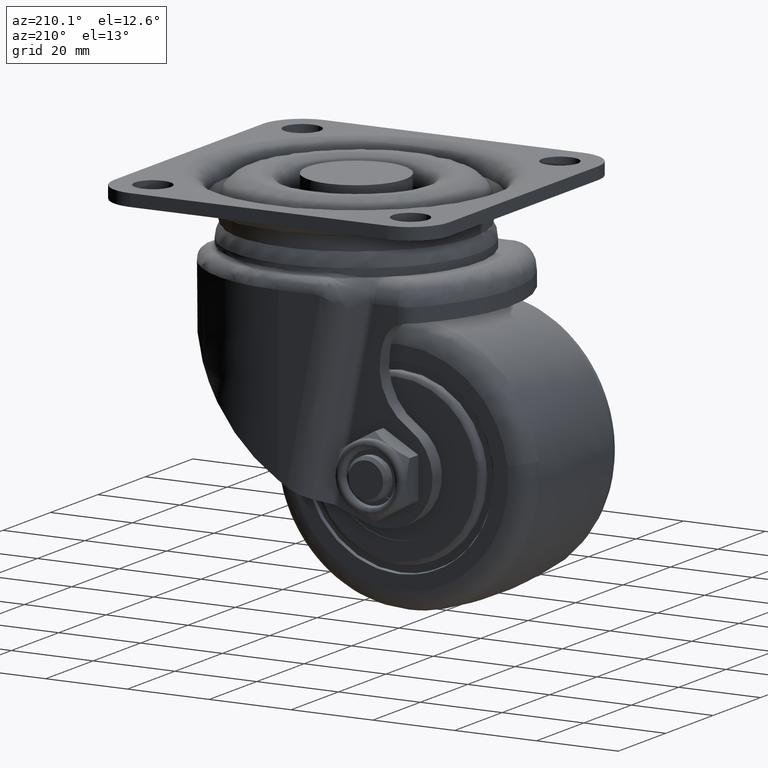
[diagram: clean part render]
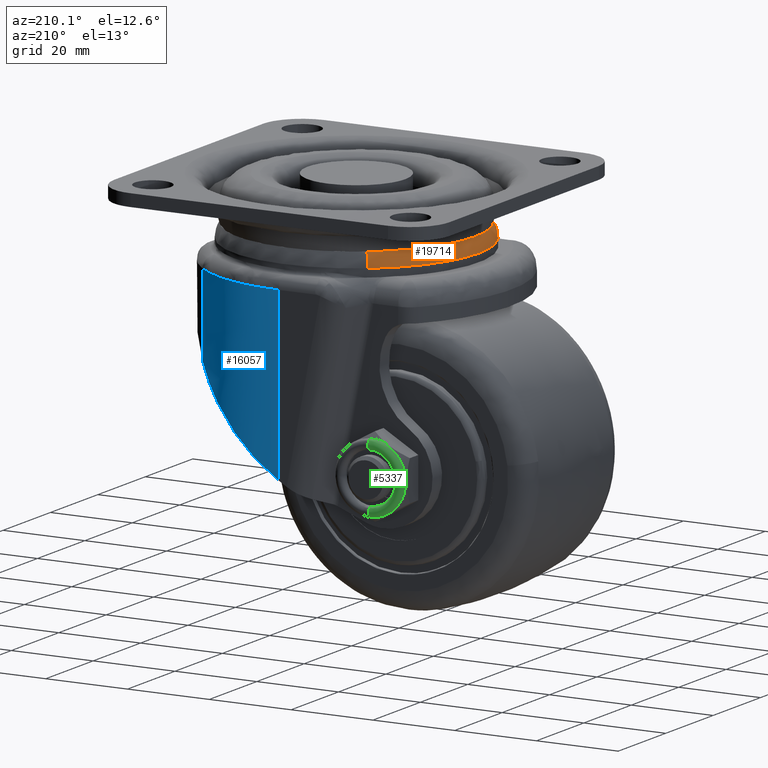
[diagram: same view with three faces highlighted in distinct colors, each labeled with its STEP entity id]
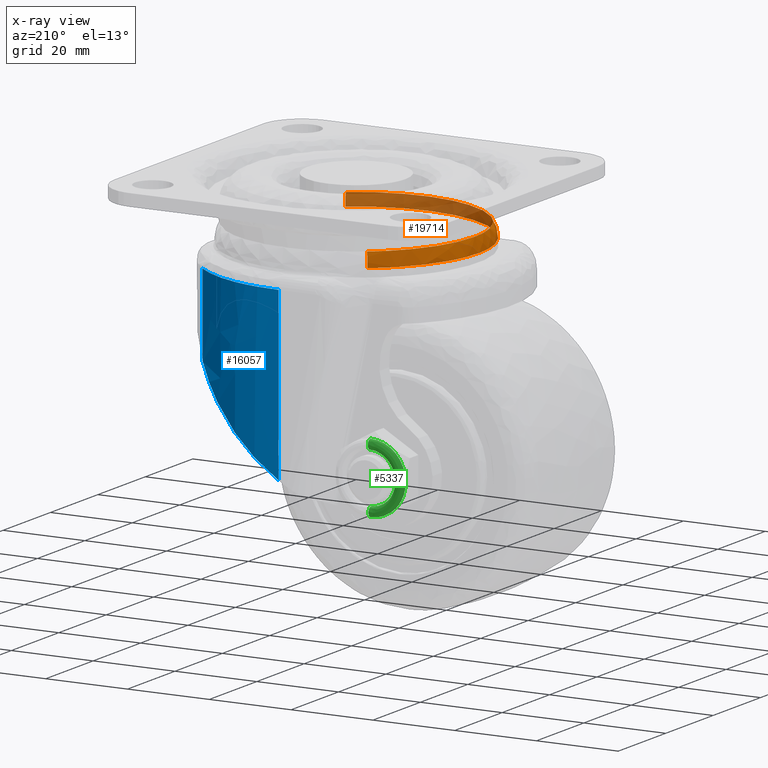
[diagram: x-ray of the same camera — body ghosted, the three highlighted faces saturated]
A machine part, auxiliary view with three faces highlighted in distinct colors.
The next image is the same camera in x-ray (body ghosted, the three faces saturated) — at least one of them is partly hidden behind the body in this view.
Their STEP definitions:

[orange] entity #19714 — the highlighted face is a freeform B-spline surface patch.
#19392=CARTESIAN_POINT('',(39.018068473803012,-24.705977928852452,43.500000000006892));
#19393=VERTEX_POINT('',#19392);
#19405=CARTESIAN_POINT('',(-7.999999999999752,0.0,43.500000000000000));
#19406=VERTEX_POINT('',#19405);
#19407=CARTESIAN_POINT('',(39.018068473803012,-24.705977928852452,43.500000000006892));
#19408=CARTESIAN_POINT('',(37.899136566577539,-25.476770882186731,43.500000000006843));
#19409=CARTESIAN_POINT('',(35.373283712868698,-26.974579594579829,43.500000000006757));
#19410=CARTESIAN_POINT('',(31.747256261285159,-28.459806140460639,43.500000000006061));
#19411=CARTESIAN_POINT('',(27.845828207082761,-29.503426131044719,43.500000000005961));
#19412=CARTESIAN_POINT('',(24.092540548080290,-30.025648319940309,43.500000000006132));
#19413=CARTESIAN_POINT('',(20.347903590472729,-30.018544063603660,43.500000000003297));
#19414=CARTESIAN_POINT('',(16.885101286128570,-29.620666105272040,43.500000000008797));
#19415=CARTESIAN_POINT('',(13.358354463294340,-28.822163332190389,43.500000000001450));
#19416=CARTESIAN_POINT('',(9.967235563813381,-27.559556591523979,43.500000000006040));
#19417=CARTESIAN_POINT('',(6.905883790530472,-25.983892573029770,43.500000000003091));
#19418=CARTESIAN_POINT('',(4.087099893762439,-24.156887830135538,43.500000000002892));
#19419=CARTESIAN_POINT('',(1.441887079658121,-21.946377487990489,43.500000000002402));
#19420=CARTESIAN_POINT('',(-1.124219552754471,-19.223670293534632,43.500000000001933));
#19421=CARTESIAN_POINT('',(-3.402204644880818,-16.144393574919139,43.500000000001641));
#19422=CARTESIAN_POINT('',(-5.187655754523197,-12.850938144891350,43.500000000000703));
#19423=CARTESIAN_POINT('',(-6.552119952336158,-9.413740274576776,43.500000000000462));
#19424=CARTESIAN_POINT('',(-7.668277099717646,-5.307464968194641,43.500000000002622));
#19425=CARTESIAN_POINT('',(-8.000257724040681,-1.995654246931439,43.499999999995772));
#19426=CARTESIAN_POINT('',(-7.999999999999752,0.0,43.500000000000000));
#19427=B_SPLINE_CURVE_WITH_KNOTS('',3,(#19407,#19408,#19409,#19410,#19411,#19412,#19413,#19414,#19415,#19416,#19417,#19418,#19419,#19420,#19421,#19422,#19423,#19424,#19425,#19426),.UNSPECIFIED.,.F.,.U.,(4,1,1,1,1,1,1,1,1,1,1,1,1,1,1,1,1,4),(0.000000084882387,4.076178666767845,8.789331415250999,11.719113739292281,16.177497220596859,20.126343366603340,22.928757651419151,26.622848726741982,30.953844479922630,33.756172154094692,36.940730674448382,41.016928273439817,44.074106910397731,48.150340847019642,52.481338954143503,55.283752444448652,59.232604568402557,65.219512481652885),.UNSPECIFIED.);
#19428=EDGE_CURVE('',#19393,#19406,#19427,.T.);
#19430=CARTESIAN_POINT('',(-6.272606098542114,10.032932990739701,43.500000000002402));
#19431=VERTEX_POINT('',#19430);
#19432=CARTESIAN_POINT('',(-7.999999999999752,0.0,43.500000000000000));
#19433=CARTESIAN_POINT('',(-8.000026331085591,1.118912833818723,43.500000000000291));
#19434=CARTESIAN_POINT('',(-7.871681139932222,3.410012511978584,43.500000000000767));
#19435=CARTESIAN_POINT('',(-7.292104178562271,6.776357195455115,43.500000000001378));
#19436=CARTESIAN_POINT('',(-6.646826149139170,8.978454677759185,43.500000000002139));
#19437=CARTESIAN_POINT('',(-6.272606098542114,10.032932990739701,43.500000000002402));
#19438=B_SPLINE_CURVE_WITH_KNOTS('',3,(#19432,#19433,#19434,#19435,#19436,#19437),.UNSPECIFIED.,.F.,.U.,(4,1,1,4),(2.530431E-009,3.356740544434717,6.873316754831905,10.230057296736179),.UNSPECIFIED.);
#19439=EDGE_CURVE('',#19406,#19431,#19438,.T.);
#19509=CARTESIAN_POINT('',(4.981931526196988,24.705977928852430,43.500000000006892));
#19510=VERTEX_POINT('',#19509);
#19511=CARTESIAN_POINT('',(-6.272606098542114,10.032932990739701,43.500000000002402));
#19512=CARTESIAN_POINT('',(-5.846980110661188,11.232458598473380,43.500000000002849));
#19513=CARTESIAN_POINT('',(-4.842708891715896,13.577199618151949,43.500000000003141));
#19514=CARTESIAN_POINT('',(-2.678345842246862,17.255261526969861,43.500000000004377));
#19515=CARTESIAN_POINT('',(0.477758870333355,21.148286055753040,43.500000000005791));
#19516=CARTESIAN_POINT('',(3.328842396267303,23.567614867073448,43.500000000006317));
#19517=CARTESIAN_POINT('',(4.981931526196988,24.705977928852430,43.500000000006892));
#19518=B_SPLINE_CURVE_WITH_KNOTS('',3,(#19511,#19512,#19513,#19514,#19515,#19516,#19517),.UNSPECIFIED.,.F.,.U.,(4,1,1,1,4),(8.555627E-009,3.818400111020671,7.636816473705320,12.776957763110991,18.798289693753109),.UNSPECIFIED.);
#19519=EDGE_CURVE('',#19431,#19510,#19518,.T.);
#19576=CARTESIAN_POINT('',(5.581147861907801,23.836065718288079,46.900001048723809));
#19577=VERTEX_POINT('',#19576);
#19578=CARTESIAN_POINT('',(5.581147861907801,23.836065718288079,46.900001048723809));
#19579=CARTESIAN_POINT('',(5.411598008994011,24.082209687593540,46.465742629176781));
#19580=CARTESIAN_POINT('',(5.216349813237287,24.365661221628219,45.788611900465561));
#19581=CARTESIAN_POINT('',(5.025576957470925,24.642615681621500,44.629565334141063));
#19582=CARTESIAN_POINT('',(4.981882827130796,24.706048627706931,43.951852828489749));
#19583=CARTESIAN_POINT('',(4.981931526196988,24.705977928852430,43.500000000006892));
#19584=B_SPLINE_CURVE_WITH_KNOTS('',3,(#19578,#19579,#19580,#19581,#19582,#19583),.UNSPECIFIED.,.F.,.U.,(4,1,1,4),(0.000000016189844,1.581455618210004,2.259207494994620,3.614742418736445),.UNSPECIFIED.);
#19585=EDGE_CURVE('',#19577,#19510,#19584,.T.);
#19612=CARTESIAN_POINT('',(38.418852138092191,-23.836065718288090,46.900001048723809));
#19613=VERTEX_POINT('',#19612);
#19627=CARTESIAN_POINT('',(38.418852138092191,-23.836065718288090,46.900001048723809));
#19628=CARTESIAN_POINT('',(38.600521899952419,-24.099804763286411,46.434740960270389));
#19629=CARTESIAN_POINT('',(38.907535473160500,-24.545511664484639,45.344777973109650));
#19630=CARTESIAN_POINT('',(39.018299323495746,-24.706313064844458,44.140160369219018));
#19631=CARTESIAN_POINT('',(39.018068473803012,-24.705977928852452,43.500000000006892));
#19632=B_SPLINE_CURVE_WITH_KNOTS('',3,(#19627,#19628,#19629,#19630,#19631),.UNSPECIFIED.,.F.,.U.,(4,1,4),(0.000000016189252,1.694414181126425,3.614742418736459),.UNSPECIFIED.);
#19633=EDGE_CURVE('',#19613,#19393,#19632,.T.);
#19640=CARTESIAN_POINT('',(39.024673103497982,-23.294189499711550,47.044547984539442));
#19641=CARTESIAN_POINT('',(38.694598289953511,-23.521552925460327,47.044547984539442));
#19642=CARTESIAN_POINT('',(14.609076329991852,-40.112236488858883,47.044547984539449));
#19643=CARTESIAN_POINT('',(-1.751580079433515,-16.360656409425371,47.044547984539449));
#19644=CARTESIAN_POINT('',(-18.112236488858876,7.390923670008149,47.044547984539449));
#19645=CARTESIAN_POINT('',(5.973285471090207,23.981607233398044,47.044547984539442));
#19646=CARTESIAN_POINT('',(6.303360284622391,24.208970659138345,47.044547984539449));
#19647=CARTESIAN_POINT('',(39.743211357799311,-24.277337085379333,45.382033745714530));
#19648=CARTESIAN_POINT('',(39.399205505528208,-24.514296543782379,45.382033745714551));
#19649=CARTESIAN_POINT('',(14.297137219076944,-41.805201528927995,45.382033745714551));
#19650=CARTESIAN_POINT('',(-2.754032154925528,-17.051169374002466,45.382033745714544));
#19651=CARTESIAN_POINT('',(-19.805201528927995,7.702862780923055,45.382033745714551));
#19652=CARTESIAN_POINT('',(5.296866757510170,24.993767766059630,45.382033745714544));
#19653=CARTESIAN_POINT('',(5.640872609768469,25.230727224453862,45.382033745714544));
#19654=CARTESIAN_POINT('',(39.707215691332387,-24.228085633045918,43.322433438632203));
#19655=CARTESIAN_POINT('',(39.363907723997187,-24.464564371614266,43.322433438632210));
#19656=CARTESIAN_POINT('',(14.312764022698417,-41.720391284577452,43.322433438632196));
#19657=CARTESIAN_POINT('',(-2.703813630939526,-17.016577653637938,43.322433438632196));
#19658=CARTESIAN_POINT('',(-19.720391284577467,7.687235977301580,43.322433438632196));
#19659=CARTESIAN_POINT('',(5.330752416708219,24.943062890255774,43.322433438632203));
#19660=CARTESIAN_POINT('',(5.674060384030649,25.179541628815326,43.322433438632196));
#19668=(BOUNDED_SURFACE()B_SPLINE_SURFACE(2,2,((#19640,#19647,#19654),(#19641,#19648,#19655),(#19642,#19649,#19656),(#19643,#19650,#19657),(#19644,#19651,#19658),(#19645,#19652,#19659),(#19646,#19653,#19660)),.UNSPECIFIED.,.F.,.F.,.U.)B_SPLINE_SURFACE_WITH_KNOTS((3,1,2,1,3),(3,3),(0.0,0.994025463290766,50.695298625956227,100.396571788621700,101.390597251874790),(0.0,4.006316261530225),.UNSPECIFIED.)GEOMETRIC_REPRESENTATION_ITEM()RATIONAL_B_SPLINE_SURFACE(((0.950938823215447,0.898498284589539,0.949070791744594),(0.945432858942656,0.893295952606304,0.943575643429977),(0.664628681040675,0.627977021471084,0.663323079394906),(0.939926894669864,0.888093620623068,0.938080495115361),(0.664628681040675,0.627977021471084,0.663323079394906),(0.945432858942447,0.893295952606107,0.943575643429769),(0.950938823215030,0.898498284589145,0.949070791744177)))REPRESENTATION_ITEM('')SURFACE());
#19669=ORIENTED_EDGE('',*,*,#19519,.F.);
#19670=ORIENTED_EDGE('',*,*,#19439,.F.);
#19671=ORIENTED_EDGE('',*,*,#19428,.F.);
#19672=ORIENTED_EDGE('',*,*,#19633,.F.);
#19673=CARTESIAN_POINT('',(-6.943682116196939,0.0,46.900001049116320));
#19674=VERTEX_POINT('',#19673);
#19675=CARTESIAN_POINT('',(38.418852138092191,-23.836065718288090,46.900001048723809));
#19676=CARTESIAN_POINT('',(37.204391776976429,-24.672723359520059,46.900001048728981));
#19677=CARTESIAN_POINT('',(34.824770092196268,-26.056472414672360,46.900001048740322));
#19678=CARTESIAN_POINT('',(31.361624165831110,-27.457847140548719,46.900001048759123));
#19679=CARTESIAN_POINT('',(27.959694241236910,-28.391131362430020,46.900001048778201));
#19680=CARTESIAN_POINT('',(24.753289789541679,-28.878928771464128,46.900001048798700));
#19681=CARTESIAN_POINT('',(21.268726792863710,-28.998180845776659,46.900001048821558));
#19682=CARTESIAN_POINT('',(17.299826709246620,-28.678444757614539,46.900001048850001));
#19683=CARTESIAN_POINT('',(12.939618844633269,-27.632613163278410,46.900001048882828));
#19684=CARTESIAN_POINT('',(8.744759363183128,-25.843434153541470,46.900001048918163));
#19685=CARTESIAN_POINT('',(5.414260927306126,-23.812879653379049,46.900001048947217));
#19686=CARTESIAN_POINT('',(2.879014931081841,-21.792891738697062,46.900001048972889));
#19687=CARTESIAN_POINT('',(0.647371729091542,-19.617939672782988,46.900001048994191));
#19688=CARTESIAN_POINT('',(-1.164518376411637,-17.441427751099450,46.900001049015621));
#19689=CARTESIAN_POINT('',(-3.058521307956164,-14.613945306685000,46.900001049038408));
#19690=CARTESIAN_POINT('',(-4.788611066031293,-11.254612119778910,46.900001049061437));
#19691=CARTESIAN_POINT('',(-6.039816916318514,-7.512739720599175,46.900001049082867));
#19692=CARTESIAN_POINT('',(-6.779761440384778,-3.686856263641730,46.900001049103487));
#19693=CARTESIAN_POINT('',(-6.943750403183245,-1.351852999749045,46.900001049110138));
#19694=CARTESIAN_POINT('',(-6.943682116196939,0.0,46.900001049116320));
#19695=B_SPLINE_CURVE_WITH_KNOTS('',3,(#19675,#19676,#19677,#19678,#19679,#19680,#19681,#19682,#19683,#19684,#19685,#19686,#19687,#19688,#19689,#19690,#19691,#19692,#19693,#19694),.UNSPECIFIED.,.F.,.U.,(4,1,1,1,1,1,1,1,1,1,1,1,1,1,1,1,1,4),(0.000000086351562,4.424260671247183,8.234046454730795,11.183590382366511,14.993391921392940,17.942918897020650,21.629837816659251,26.914414099278961,31.338707494982039,35.271340300732561,38.589519483339160,41.047487283164948,44.611483549363832,47.069424340014180,51.247928134822757,55.918012763656762,58.867542853435637,62.923094568298630),.UNSPECIFIED.);
#19696=EDGE_CURVE('',#19613,#19674,#19695,.T.);
#19697=ORIENTED_EDGE('',*,*,#19696,.T.);
#19698=CARTESIAN_POINT('',(-6.943682116196939,0.0,46.900001049116320));
#19699=CARTESIAN_POINT('',(-6.943989578561386,1.969213700398755,46.900001049090847));
#19700=CARTESIAN_POINT('',(-6.622321809513056,5.105195948186492,46.900001049048392));
#19701=CARTESIAN_POINT('',(-5.533137004990114,9.125051000411917,46.900001048988877));
#19702=CARTESIAN_POINT('',(-4.293314051436305,12.247515313727600,46.900001048940403));
#19703=CARTESIAN_POINT('',(-2.638555182703270,15.339775455882201,46.900001048889123));
#19704=CARTESIAN_POINT('',(-0.345358326813129,18.552873122851111,46.900001048832031));
#19705=CARTESIAN_POINT('',(2.436249118433900,21.458977376901281,46.900001048776602));
#19706=CARTESIAN_POINT('',(4.560065919543603,23.132759135034458,46.900001048738353));
#19707=CARTESIAN_POINT('',(5.581147861907801,23.836065718288079,46.900001048723809));
#19708=B_SPLINE_CURVE_WITH_KNOTS('',3,(#19698,#19699,#19700,#19701,#19702,#19703,#19704,#19705,#19706,#19707),.UNSPECIFIED.,.F.,.U.,(4,1,1,1,1,1,1,4),(8.703658E-009,5.907570444303243,9.408367086671753,12.471567110991581,15.972310265170711,19.910709683528580,24.286695176620359,28.006278487154489),.UNSPECIFIED.);
#19709=EDGE_CURVE('',#19674,#19577,#19708,.T.);
#19710=ORIENTED_EDGE('',*,*,#19709,.T.);
#19711=ORIENTED_EDGE('',*,*,#19585,.T.);
#19712=EDGE_LOOP('',(#19669,#19670,#19671,#19672,#19697,#19710,#19711));
#19713=FACE_OUTER_BOUND('',#19712,.T.);
#19714=ADVANCED_FACE('',(#19713),#19668,.T.);

[blue] entity #16057 — the highlighted face is a freeform B-spline surface patch.
#11977=CARTESIAN_POINT('',(46.209957978204997,23.083460919150401,18.377184052013600));
#11978=VERTEX_POINT('',#11977);
#12017=CARTESIAN_POINT('',(46.209957978204997,23.083460919150401,38.499999999999098));
#12018=VERTEX_POINT('',#12017);
#12019=CARTESIAN_POINT('',(46.209957978204997,23.083460919150401,18.377184052013600));
#12020=CARTESIAN_POINT('',(46.209957978204997,23.083460919150401,38.499999999999098));
#12021=QUASI_UNIFORM_CURVE('',1,(#12019,#12020),.UNSPECIFIED.,.F.,.U.);
#12022=EDGE_CURVE('',#11978,#12018,#12021,.T.);
#13743=CARTESIAN_POINT('',(22.0,32.873504999999987,38.502668017230249));
#13744=VERTEX_POINT('',#13743);
#13823=CARTESIAN_POINT('',(33.961449775524848,30.755139152304601,38.499999999999098));
#13824=VERTEX_POINT('',#13823);
#13836=CARTESIAN_POINT('',(22.0,32.873504999999987,38.502668017230249));
#13837=CARTESIAN_POINT('',(23.653437544901781,32.873554167614110,38.502395373863109));
#13838=CARTESIAN_POINT('',(27.723450974369161,32.583234993645348,38.501628889890462));
#13839=CARTESIAN_POINT('',(31.691959539336079,31.585415312008941,38.500646852336502));
#13840=CARTESIAN_POINT('',(33.961449775524848,30.755139152304601,38.499999999999098));
#13841=B_SPLINE_CURVE_WITH_KNOTS('',3,(#13836,#13837,#13838,#13839,#13840),.UNSPECIFIED.,.F.,.U.,(4,1,4),(2.536853E-009,4.960328938597629,12.210024792715330),.UNSPECIFIED.);
#13842=EDGE_CURVE('',#13744,#13824,#13841,.T.);
#13888=CARTESIAN_POINT('',(33.961449775524848,30.755139152304601,38.499999999999098));
#13889=CARTESIAN_POINT('',(35.599409209094070,30.156313475073400,38.499999999999083));
#13890=CARTESIAN_POINT('',(38.023191590033122,29.057167045127489,38.499999999999169));
#13891=CARTESIAN_POINT('',(42.188814434104913,26.560421030867719,38.499999999999027));
#13892=CARTESIAN_POINT('',(44.629290195815187,24.612162743498931,38.499999999999169));
#13893=CARTESIAN_POINT('',(46.209957978204997,23.083460919150401,38.499999999999098));
#13894=B_SPLINE_CURVE_WITH_KNOTS('',3,(#13888,#13889,#13890,#13891,#13892,#13893),.UNSPECIFIED.,.F.,.U.,(4,1,1,4),(2.256293E-009,5.231956464902353,7.961660980328954,14.558480038090179),.UNSPECIFIED.);
#13895=EDGE_CURVE('',#13824,#12018,#13894,.T.);
#16004=CARTESIAN_POINT('',(20.705451148641025,32.849438761021446,-3.805665920149413));
#16005=CARTESIAN_POINT('',(20.705451148641025,32.849438761021446,39.560376365664730));
#16006=CARTESIAN_POINT('',(36.315026177898289,33.430017297919541,-3.805665920149414));
#16007=CARTESIAN_POINT('',(36.315026177898289,33.430017297919541,39.560376365664737));
#16008=CARTESIAN_POINT('',(47.130404838815721,22.159547544954915,-3.805665920149414));
#16009=CARTESIAN_POINT('',(47.130404838815721,22.159547544954915,39.560376365664744));
#16017=(BOUNDED_SURFACE()B_SPLINE_SURFACE(1,2,((#16004,#16006,#16008),(#16005,#16007,#16009)),.UNSPECIFIED.,.F.,.F.,.U.)B_SPLINE_SURFACE_WITH_KNOTS((2,2),(3,3),(0.0,43.366042285814160),(0.0,29.810285558450680),.UNSPECIFIED.)GEOMETRIC_REPRESENTATION_ITEM()RATIONAL_B_SPLINE_SURFACE(((0.998686818005387,0.907811939732172,0.991183017981419),(0.998686818005387,0.907811939732172,0.991183017981419)))REPRESENTATION_ITEM('')SURFACE());
#16018=CARTESIAN_POINT('',(22.0,32.873504999999987,-2.773755336310885));
#16019=VERTEX_POINT('',#16018);
#16020=CARTESIAN_POINT('',(22.0,32.873504999999987,-2.773755336310885));
#16021=CARTESIAN_POINT('',(22.0,32.873504999999987,38.502668017230249));
#16022=QUASI_UNIFORM_CURVE('',1,(#16020,#16021),.UNSPECIFIED.,.F.,.U.);
#16023=EDGE_CURVE('',#16019,#13744,#16022,.T.);
#16024=ORIENTED_EDGE('',*,*,#16023,.T.);
#16025=ORIENTED_EDGE('',*,*,#13842,.T.);
#16026=ORIENTED_EDGE('',*,*,#13895,.T.);
#16027=ORIENTED_EDGE('',*,*,#12022,.F.);
#16028=CARTESIAN_POINT('',(22.0,32.873504999999987,-2.773755336310885));
#16029=CARTESIAN_POINT('',(23.228798558183570,32.873505000000002,-2.023672794887022));
#16030=CARTESIAN_POINT('',(24.428628012184632,32.808736384658793,-1.252980815540364));
#16031=CARTESIAN_POINT('',(26.774540293779509,32.564848062413837,0.328281198679590));
#16032=CARTESIAN_POINT('',(27.920609561031078,32.385670685891952,1.138853160772639));
#16033=CARTESIAN_POINT('',(30.161962442013198,31.922997011366611,2.798731678733325));
#16034=CARTESIAN_POINT('',(31.257238209601990,31.639471321933250,3.648040472145814));
#16035=CARTESIAN_POINT('',(33.399087775524897,30.974428228825559,5.384381206431286));
#16036=CARTESIAN_POINT('',(34.445657138226252,30.592899874628049,6.271416011258047));
#16037=CARTESIAN_POINT('',(35.596430823361082,30.110358480496991,7.290012558696668));
#16038=CARTESIAN_POINT('',(35.723924478471673,30.056000242807642,7.403477209013885));
#16039=CARTESIAN_POINT('',(35.978173643222632,29.945801666384519,7.630979130477650));
#16040=CARTESIAN_POINT('',(36.104967308514489,29.889943446266638,7.745051462116537));
#16041=CARTESIAN_POINT('',(36.483511426163588,29.720481656253192,8.087458685973699));
#16042=CARTESIAN_POINT('',(36.733647327600913,29.604897434594349,8.316181008274581));
#16043=CARTESIAN_POINT('',(37.477518336114620,29.250464719169059,9.003658891316146));
#16044=CARTESIAN_POINT('',(37.964720206544278,29.003942751229840,9.463726280098529));
#16045=CARTESIAN_POINT('',(39.401206518291971,28.234621901049010,10.848811407171519));
#16046=CARTESIAN_POINT('',(40.325416810867729,27.682165998140771,11.778731735343429));
#16047=CARTESIAN_POINT('',(42.111147294659943,26.500700635077418,13.649292339225230));
#16048=CARTESIAN_POINT('',(42.972660234601229,25.871697545378002,14.589943586354019));
#16049=CARTESIAN_POINT('',(44.635816485918191,24.536514921232410,16.478884195376519));
#16050=CARTESIAN_POINT('',(45.437459304120082,23.830364962888961,17.427192930501779));
#16051=CARTESIAN_POINT('',(46.209957978205701,23.083460919149751,18.377184052012499));
#16052=B_SPLINE_CURVE_WITH_KNOTS('',3,(#16028,#16029,#16030,#16031,#16032,#16033,#16034,#16035,#16036,#16037,#16038,#16039,#16040,#16041,#16042,#16043,#16044,#16045,#16046,#16047,#16048,#16049,#16050,#16051),.UNSPECIFIED.,.F.,.U.,(4,2,2,2,2,2,2,2,2,2,2,4),(0.0,0.124999999999999,0.249999999999999,0.374999999999998,0.499999999999997,0.515624999999997,0.531249999999997,0.562499999999997,0.624999999999997,0.749999999999998,0.874999999999999,1.0),.UNSPECIFIED.);
#16053=EDGE_CURVE('',#16019,#11978,#16052,.T.);
#16054=ORIENTED_EDGE('',*,*,#16053,.F.);
#16055=EDGE_LOOP('',(#16024,#16025,#16026,#16027,#16054));
#16056=FACE_OUTER_BOUND('',#16055,.T.);
#16057=ADVANCED_FACE('',(#16056),#16017,.T.);

[green] entity #5337 — the highlighted face is a freeform B-spline surface patch.
#4870=CARTESIAN_POINT('',(-7.469941757322753,31.800002980537592,-4.055854705509722));
#4871=VERTEX_POINT('',#4870);
#4872=CARTESIAN_POINT('',(-0.106811326456687,31.800002980506381,-8.499327875811055));
#4873=VERTEX_POINT('',#4872);
#4874=CARTESIAN_POINT('',(-7.469941757322753,31.800002980537592,-4.055854705509722));
#4875=CARTESIAN_POINT('',(-7.268277281340072,31.800002980540761,-4.427306514574386));
#4876=CARTESIAN_POINT('',(-6.771156344084950,31.800002980546068,-5.199446735821548));
#4877=CARTESIAN_POINT('',(-5.792724584119739,31.800002980549792,-6.284943805978938));
#4878=CARTESIAN_POINT('',(-4.688882069781883,31.800002980548459,-7.132514389497533));
#4879=CARTESIAN_POINT('',(-3.468976441616579,31.800002980541631,-7.794802997509528));
#4880=CARTESIAN_POINT('',(-2.006713373262474,31.800002980529861,-8.325694807185444));
#4881=CARTESIAN_POINT('',(-0.811216869181202,31.800002980516052,-8.490650119524066));
#4882=CARTESIAN_POINT('',(-0.106811326456687,31.800002980506381,-8.499327875811055));
#4883=B_SPLINE_CURVE_WITH_KNOTS('',3,(#4874,#4875,#4876,#4877,#4878,#4879,#4880,#4881,#4882),.UNSPECIFIED.,.F.,.U.,(4,1,1,1,1,1,4),(0.000000042912941,1.267996229349063,2.747342708588024,4.367580478227387,5.424220196856188,6.903575044840630,9.016913016990774),.UNSPECIFIED.);
#4884=EDGE_CURVE('',#4871,#4873,#4883,.T.);
#5000=CARTESIAN_POINT('',(-8.499831725452715,31.800002980369310,0.053325781636994));
#5001=VERTEX_POINT('',#5000);
#5002=CARTESIAN_POINT('',(-8.499831725452715,31.800002980369310,0.053325781636994));
#5003=CARTESIAN_POINT('',(-8.504349887141741,31.800002980397629,-0.637948979622868));
#5004=CARTESIAN_POINT('',(-8.337989903542589,31.800002980456259,-2.066043064317777));
#5005=CARTESIAN_POINT('',(-7.821284112869283,31.800002980511149,-3.409262920821301));
#5006=CARTESIAN_POINT('',(-7.469941757322753,31.800002980537592,-4.055854705509722));
#5007=B_SPLINE_CURVE_WITH_KNOTS('',3,(#5002,#5003,#5004,#5005,#5006),.UNSPECIFIED.,.F.,.U.,(4,1,4),(9.384563E-009,2.073818397935490,4.281403232810681),.UNSPECIFIED.);
#5008=EDGE_CURVE('',#5001,#4871,#5007,.T.);
#5057=CARTESIAN_POINT('',(0.106811326456518,31.800002980506381,8.499327875811053));
#5058=VERTEX_POINT('',#5057);
#5070=CARTESIAN_POINT('',(-8.259762E-014,31.800002980232239,8.499998999999839));
#5071=VERTEX_POINT('',#5070);
#5072=CARTESIAN_POINT('',(0.106811326456518,31.800002980506381,8.499327875811053));
#5073=CARTESIAN_POINT('',(-8.259762E-014,31.800002980232239,8.499998999999839));
#5074=QUASI_UNIFORM_CURVE('',1,(#5072,#5073),.UNSPECIFIED.,.F.,.U.);
#5075=EDGE_CURVE('',#5058,#5071,#5074,.T.);
#5077=CARTESIAN_POINT('',(-8.259762E-014,31.800002980232239,8.499998999999839));
#5078=CARTESIAN_POINT('',(-0.692636600930527,31.800002980232311,8.500167655868964));
#5079=CARTESIAN_POINT('',(-1.870010590566996,31.800002980234780,8.355238418603213));
#5080=CARTESIAN_POINT('',(-3.612849887196675,31.800002980244550,7.758314854844844));
#5081=CARTESIAN_POINT('',(-4.965175953731218,31.800002980257531,6.962889431375680));
#5082=CARTESIAN_POINT('',(-6.138708055718927,31.800002980274449,5.931088210462333));
#5083=CARTESIAN_POINT('',(-7.068854110641437,31.800002980292440,4.805937531352542));
#5084=CARTESIAN_POINT('',(-7.795905567806741,31.800002980313732,3.498159197590625));
#5085=CARTESIAN_POINT('',(-8.347803243175719,31.800002980339759,1.887784576671850));
#5086=CARTESIAN_POINT('',(-8.495671297244218,31.800002980358030,0.745956006456573));
#5087=CARTESIAN_POINT('',(-8.499831725452715,31.800002980369310,0.053325781636994));
#5088=B_SPLINE_CURVE_WITH_KNOTS('',3,(#5077,#5078,#5079,#5080,#5081,#5082,#5083,#5084,#5085,#5086,#5087),.UNSPECIFIED.,.F.,.U.,(4,1,1,1,1,1,1,1,4),(0.000000076212675,2.077877402469257,3.532421336350536,5.506443359642825,6.753134670581860,8.207658389546966,9.869996720192859,11.220645157898311,13.298523852432350),.UNSPECIFIED.);
#5089=EDGE_CURVE('',#5071,#5001,#5088,.T.);
#5137=CARTESIAN_POINT('',(-0.076652830861985,31.800002981783791,-6.099517369720325));
#5138=VERTEX_POINT('',#5137);
#5172=CARTESIAN_POINT('',(0.076652830861820,31.800002981783791,6.099517369720325));
#5173=VERTEX_POINT('',#5172);
#5184=CARTESIAN_POINT('',(0.091732118976011,33.000002980227947,7.299425830909183));
#5185=VERTEX_POINT('',#5184);
#5186=CARTESIAN_POINT('',(0.076652830861820,31.800002981783791,6.099517369720325));
#5187=CARTESIAN_POINT('',(0.076652015889836,31.927635794036600,6.099452519724045));
#5188=CARTESIAN_POINT('',(0.077149558391604,32.173040950033503,6.139043610042839));
#5189=CARTESIAN_POINT('',(0.078999619620240,32.465565631299739,6.286259055834867));
#5190=CARTESIAN_POINT('',(0.081591151636580,32.704577471918213,6.492475766484621));
#5191=CARTESIAN_POINT('',(0.085566576907920,32.927576181696473,6.808813406814983));
#5192=CARTESIAN_POINT('',(0.089387412543857,33.000319513520807,7.112849842332000));
#5193=CARTESIAN_POINT('',(0.091732118976011,33.000002980227947,7.299425830909183));
#5194=B_SPLINE_CURVE_WITH_KNOTS('',3,(#5186,#5187,#5188,#5189,#5190,#5191,#5192,#5193),.UNSPECIFIED.,.F.,.U.,(4,1,1,1,1,4),(0.000000258843551,0.382887796542326,0.736355298823868,0.971917170827436,1.325390019512204,1.885004700713741),.UNSPECIFIED.);
#5195=EDGE_CURVE('',#5173,#5185,#5194,.T.);
#5197=CARTESIAN_POINT('',(0.091732118976011,33.000002980227947,7.299425830909183));
#5198=CARTESIAN_POINT('',(0.093582874285279,33.000135474435233,7.446696506975869));
#5199=CARTESIAN_POINT('',(0.096542363266950,32.956054905126102,7.682192761375287));
#5200=CARTESIAN_POINT('',(0.100619016488931,32.787742270982037,8.006585442073797));
#5201=CARTESIAN_POINT('',(0.103915388819976,32.544195384893797,8.268888610585282));
#5202=CARTESIAN_POINT('',(0.106275279056508,32.192678158153392,8.456672824325921));
#5203=CARTESIAN_POINT('',(0.106812058731922,31.927633962918659,8.499386145369057));
#5204=CARTESIAN_POINT('',(0.106811326456518,31.800002980506381,8.499327875811053));
#5205=B_SPLINE_CURVE_WITH_KNOTS('',3,(#5197,#5198,#5199,#5200,#5201,#5202,#5203,#5204),.UNSPECIFIED.,.F.,.U.,(4,1,1,1,1,4),(0.000000263214862,0.441794877616561,0.706879839511581,1.089748926009891,1.502114280754662,1.885001084732537),.UNSPECIFIED.);
#5206=EDGE_CURVE('',#5185,#5058,#5205,.T.);
#5212=CARTESIAN_POINT('',(-0.091732118976178,33.000002980227947,-7.299425830909186));
#5213=VERTEX_POINT('',#5212);
#5214=CARTESIAN_POINT('',(-0.091732118976178,33.000002980227947,-7.299425830909186));
#5215=CARTESIAN_POINT('',(-0.094077003535071,33.000324417629990,-7.486015993615768));
#5216=CARTESIAN_POINT('',(-0.097650604051516,32.932255834847517,-7.770379118991409));
#5217=CARTESIAN_POINT('',(-0.101474037775860,32.728790413586147,-8.074622292932540));
#5218=CARTESIAN_POINT('',(-0.103867336019589,32.528754846879167,-8.265064891485666));
#5219=CARTESIAN_POINT('',(-0.106104684272117,32.231828992946333,-8.443098037248594));
#5220=CARTESIAN_POINT('',(-0.106814123886388,31.966942641039392,-8.499550476476447));
#5221=CARTESIAN_POINT('',(-0.106811326456687,31.800002980506381,-8.499327875811055));
#5222=B_SPLINE_CURVE_WITH_KNOTS('',3,(#5214,#5215,#5216,#5217,#5218,#5219,#5220,#5221),.UNSPECIFIED.,.F.,.U.,(4,1,1,1,1,4),(0.000000263216871,0.559613871732671,0.854153641653903,1.089748926010551,1.384295285566795,1.885001084732541),.UNSPECIFIED.);
#5223=EDGE_CURVE('',#5213,#4873,#5222,.T.);
#5225=CARTESIAN_POINT('',(-0.076652830861985,31.800002981783791,-6.099517369720325));
#5226=CARTESIAN_POINT('',(-0.076648823208618,31.986598257567639,-6.099198467584588));
#5227=CARTESIAN_POINT('',(-0.077563080982375,32.290641545193722,-6.171948960189511));
#5228=CARTESIAN_POINT('',(-0.080436956222230,32.615145708573863,-6.400632648079111));
#5229=CARTESIAN_POINT('',(-0.083665923499878,32.831412543311387,-6.657572175198055));
#5230=CARTESIAN_POINT('',(-0.087414249963093,32.968011828964073,-6.955838817790861));
#5231=CARTESIAN_POINT('',(-0.090375101505127,33.000033914612082,-7.191443495591676));
#5232=CARTESIAN_POINT('',(-0.091732118976178,33.000002980227947,-7.299425830909186));
#5233=B_SPLINE_CURVE_WITH_KNOTS('',3,(#5225,#5226,#5227,#5228,#5229,#5230,#5231,#5232),.UNSPECIFIED.,.F.,.U.,(4,1,1,1,1,4),(0.000000258843867,0.559614942259961,0.913087787127881,1.178123768971680,1.561024870698812,1.885004700713743),.UNSPECIFIED.);
#5234=EDGE_CURVE('',#5138,#5213,#5233,.T.);
#5239=CARTESIAN_POINT('',(0.247667770262918,31.629671518665980,6.109519359590582));
#5240=CARTESIAN_POINT('',(0.162734169832996,31.629671518665972,6.110586722875540));
#5241=CARTESIAN_POINT('',(-6.034861080721585,31.629671518665976,6.188472101476962));
#5242=CARTESIAN_POINT('',(-6.111666591099315,31.629671518665983,0.076805510377731));
#5243=CARTESIAN_POINT('',(-6.188472101477047,31.629671518665976,-6.034861080721500));
#5244=CARTESIAN_POINT('',(0.009123149003435,31.629671518665969,-6.112746459321997));
#5245=CARTESIAN_POINT('',(0.094056749360969,31.629671518665976,-6.113813822606046));
#5246=CARTESIAN_POINT('',(0.239705544005239,33.000002980232239,5.913105529017980));
#5247=CARTESIAN_POINT('',(0.157502458501761,33.000002980232232,5.914138577834143));
#5248=CARTESIAN_POINT('',(-5.840847425624916,33.000002980232239,5.989520033515233));
#5249=CARTESIAN_POINT('',(-5.915183729570116,33.000002980232246,0.074336303945200));
#5250=CARTESIAN_POINT('',(-5.989520033515315,33.000002980232239,-5.840847425624831));
#5251=CARTESIAN_POINT('',(0.008829850539644,33.000002980232246,-5.916228881305024));
#5252=CARTESIAN_POINT('',(0.091032935973061,33.000002980232239,-5.917261930120307));
#5253=CARTESIAN_POINT('',(0.295800122313652,33.000002980232232,7.296858093105722));
#5254=CARTESIAN_POINT('',(0.194360321046664,33.000002980232253,7.298132890346839));
#5255=CARTESIAN_POINT('',(-7.207690544184300,33.000002980232246,7.391154701349084));
#5256=CARTESIAN_POINT('',(-7.299422622766734,33.000002980232239,0.091732078582433));
#5257=CARTESIAN_POINT('',(-7.391154701349168,33.000002980232246,-7.207690544184217));
#5258=CARTESIAN_POINT('',(0.010896163793297,33.000002980232253,-7.300712355185357));
#5259=CARTESIAN_POINT('',(0.112335964973830,33.000002980232225,-7.301987152425376));
#5260=CARTESIAN_POINT('',(0.351894696685233,33.000002980232239,8.680610560078890));
#5261=CARTESIAN_POINT('',(0.231218181004807,33.000002980232239,8.682127105727984));
#5262=CARTESIAN_POINT('',(-8.574533566815845,33.000002980232246,8.792789270813353));
#5263=CARTESIAN_POINT('',(-8.683661418814639,33.000002980232239,0.109127851998796));
#5264=CARTESIAN_POINT('',(-8.792789270813435,33.000002980232246,-8.574533566815765));
#5265=CARTESIAN_POINT('',(0.012962476901932,33.000002980232246,-8.685195731899809));
#5266=CARTESIAN_POINT('',(0.133638992479508,33.000002980232239,-8.686712277547608));
#5267=CARTESIAN_POINT('',(0.343932474843873,31.629671601187624,8.484196838448943));
#5268=CARTESIAN_POINT('',(0.225986472575387,31.629671601187621,8.485679069648276));
#5269=CARTESIAN_POINT('',(-8.380520019330554,31.629671601187614,8.593837313202135));
#5270=CARTESIAN_POINT('',(-8.487178666266383,31.629671601187624,0.106658646935832));
#5271=CARTESIAN_POINT('',(-8.593837313202219,31.629671601187614,-8.380520019330472));
#5272=CARTESIAN_POINT('',(0.012669178600823,31.629671601187617,-8.488678262883035));
#5273=CARTESIAN_POINT('',(0.130615180768785,31.629671601187624,-8.490160494081104));
#5281=(BOUNDED_SURFACE()B_SPLINE_SURFACE(2,2,((#5239,#5246,#5253,#5260,#5267),(#5240,#5247,#5254,#5261,#5268),(#5241,#5248,#5255,#5262,#5269),(#5242,#5249,#5256,#5263,#5270),(#5243,#5250,#5257,#5264,#5271),(#5244,#5251,#5258,#5265,#5272),(#5245,#5252,#5259,#5266,#5273)),.UNSPECIFIED.,.F.,.F.,.U.)B_SPLINE_SURFACE_WITH_KNOTS((3,1,2,1,3),(3,2,3),(0.0,0.281262568327609,14.344390973232050,28.407519378136492,28.688781946220129),(0.0,2.191877297749930,4.383754495465237),.UNSPECIFIED.)GEOMETRIC_REPRESENTATION_ITEM()RATIONAL_B_SPLINE_SURFACE(((0.997214221624607,0.657910145102216,1.011715728762099,0.657910161249473,0.997214190653755),(0.991440321404356,0.654100825650752,1.005857864381049,0.654100841704517,0.991440290612827),(0.696971410407157,0.459825533781531,0.707106781186548,0.459825545067147,0.696971388761057),(0.985666421184105,0.650291506199288,1.0,0.650291522159560,0.985666390571898),(0.696971410407157,0.459825533781531,0.707106781186548,0.459825545067147,0.696971388761057),(0.991440321399348,0.654100825647448,1.005857864375968,0.654100841701212,0.991440290607819),(0.997214221614590,0.657910145095607,1.011715728751937,0.657910161242865,0.997214190643739)))REPRESENTATION_ITEM('')SURFACE());
#5282=CARTESIAN_POINT('',(-8.259762E-014,31.800002980232239,6.099998999999841));
#5283=VERTEX_POINT('',#5282);
#5284=CARTESIAN_POINT('',(-6.099879085886768,31.800002981008021,0.038248366780390));
#5285=VERTEX_POINT('',#5284);
#5286=CARTESIAN_POINT('',(-8.259762E-014,31.800002980232239,6.099998999999841));
#5287=CARTESIAN_POINT('',(-0.372787602447787,31.800002980232509,6.100025302447874));
#5288=CARTESIAN_POINT('',(-1.217807841229167,31.800002980243129,6.022358150526748));
#5289=CARTESIAN_POINT('',(-2.293636088474503,31.800002980286180,5.690227745090764));
#5290=CARTESIAN_POINT('',(-3.308498540209461,31.800002980354630,5.158184666852935));
#5291=CARTESIAN_POINT('',(-4.144855264387273,31.800002980435870,4.525309966939679));
#5292=CARTESIAN_POINT('',(-4.863313556250630,31.800002980537581,3.728112119281205));
#5293=CARTESIAN_POINT('',(-5.373130957437843,31.800002980639920,2.930102630831503));
#5294=CARTESIAN_POINT('',(-5.734953863315790,31.800002980740690,2.136890566742607));
#5295=CARTESIAN_POINT('',(-6.017523138243700,31.800002980862779,1.180974291119489));
#5296=CARTESIAN_POINT('',(-6.097292363991728,31.800002980954190,0.460746837397006));
#5297=CARTESIAN_POINT('',(-6.099879085886768,31.800002981008021,0.038248366780390));
#5298=B_SPLINE_CURVE_WITH_KNOTS('',3,(#5286,#5287,#5288,#5289,#5290,#5291,#5292,#5293,#5294,#5295,#5296,#5297),.UNSPECIFIED.,.F.,.U.,(4,1,1,1,1,1,1,1,1,4),(0.000000113462862,1.118374704123200,2.535038294001314,3.355214276758394,4.548175342270667,5.666523929880826,6.561268155696240,7.381433996728998,8.276153445417203,9.543666810240472),.UNSPECIFIED.);
#5299=EDGE_CURVE('',#5283,#5285,#5298,.T.);
#5300=ORIENTED_EDGE('',*,*,#5299,.T.);
#5301=CARTESIAN_POINT('',(-4.254232680772036,31.800002981562091,-4.371669257600697));
#5302=VERTEX_POINT('',#5301);
#5303=CARTESIAN_POINT('',(-6.099879085886768,31.800002981008021,0.038248366780390));
#5304=CARTESIAN_POINT('',(-6.104207756113346,31.800002981088610,-0.601372264086036));
#5305=CARTESIAN_POINT('',(-5.928374369193231,31.800002981233469,-1.753640091483914));
#5306=CARTESIAN_POINT('',(-5.234069001341161,31.800002981421962,-3.250880525546993));
#5307=CARTESIAN_POINT('',(-4.602687550407501,31.800002981519540,-4.032723880631903));
#5308=CARTESIAN_POINT('',(-4.254232680772036,31.800002981562091,-4.371669257600697));
#5309=B_SPLINE_CURVE_WITH_KNOTS('',3,(#5303,#5304,#5305,#5306,#5307,#5308),.UNSPECIFIED.,.F.,.U.,(4,1,1,4),(0.000000032483908,1.918850645217871,3.453923179195614,4.912251795945872),.UNSPECIFIED.);
#5310=EDGE_CURVE('',#5285,#5302,#5309,.T.);
#5311=ORIENTED_EDGE('',*,*,#5310,.T.);
#5312=CARTESIAN_POINT('',(-4.254232680772036,31.800002981562091,-4.371669257600697));
#5313=CARTESIAN_POINT('',(-3.960396624035442,31.800002981598631,-4.657695178989919));
#5314=CARTESIAN_POINT('',(-3.409666858308721,31.800002981654490,-5.094728114209493));
#5315=CARTESIAN_POINT('',(-2.411680044111025,31.800002981724049,-5.638620150539681));
#5316=CARTESIAN_POINT('',(-1.329764249412175,31.800002981770390,-5.998349567429587));
#5317=CARTESIAN_POINT('',(-0.486679136367416,31.800002981782910,-6.094406848566907));
#5318=CARTESIAN_POINT('',(-0.076652830861985,31.800002981783791,-6.099517369720325));
#5319=B_SPLINE_CURVE_WITH_KNOTS('',3,(#5312,#5313,#5314,#5315,#5316,#5317,#5318),.UNSPECIFIED.,.F.,.U.,(4,1,1,1,4),(0.000000027872965,1.230178770683293,2.098543108780298,3.401078809436869,4.631257552247210),.UNSPECIFIED.);
#5320=EDGE_CURVE('',#5302,#5138,#5319,.T.);
#5321=ORIENTED_EDGE('',*,*,#5320,.T.);
#5322=ORIENTED_EDGE('',*,*,#5234,.T.);
#5323=ORIENTED_EDGE('',*,*,#5223,.T.);
#5324=ORIENTED_EDGE('',*,*,#4884,.F.);
#5325=ORIENTED_EDGE('',*,*,#5008,.F.);
#5326=ORIENTED_EDGE('',*,*,#5089,.F.);
#5327=ORIENTED_EDGE('',*,*,#5075,.F.);
#5328=ORIENTED_EDGE('',*,*,#5206,.F.);
#5329=ORIENTED_EDGE('',*,*,#5195,.F.);
#5330=CARTESIAN_POINT('',(0.076652830861820,31.800002981783791,6.099517369720325));
#5331=CARTESIAN_POINT('',(-8.259762E-014,31.800002980232239,6.099998999999841));
#5332=QUASI_UNIFORM_CURVE('',1,(#5330,#5331),.UNSPECIFIED.,.F.,.U.);
#5333=EDGE_CURVE('',#5173,#5283,#5332,.T.);
#5334=ORIENTED_EDGE('',*,*,#5333,.T.);
#5335=EDGE_LOOP('',(#5300,#5311,#5321,#5322,#5323,#5324,#5325,#5326,#5327,#5328,#5329,#5334));
#5336=FACE_OUTER_BOUND('',#5335,.T.);
#5337=ADVANCED_FACE('',(#5336),#5281,.T.);